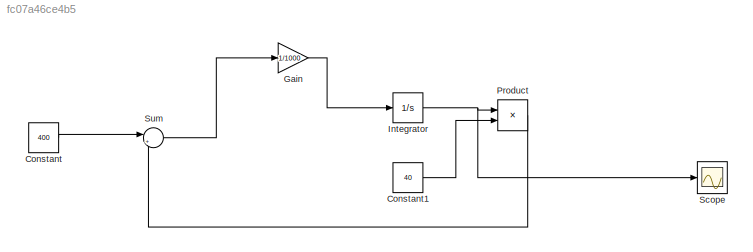
MODEL slx_fc07a46ce4b5
KIND model
CONFIG AbsTol = auto
CONFIG EnableMultiTasking = off
CONFIG FixedStep = auto
CONFIG MaxStep = auto
CONFIG MinStep = auto
CONFIG RelTol = 1e-3
CONFIG SampleTimeConstraint = Unconstrained
CONFIG SolverName = VariableStepAuto
CONFIG StartTime = 0.0
CONFIG StopTime = 10.0
BLOCK [Constant] Constant
  Value = 400
BLOCK [Constant] Constant1
  Value = 40
BLOCK [Gain] Gain
  Gain = 1/1000
BLOCK [Integrator] Integrator
BLOCK [Product] Product
BLOCK [Scope] Scope
  ActiveDisplayYMaximum = 3.7088994820990315
  ActiveDisplayYMinimum = -0.41209994245544784
  Floating = off
  GraphicalSettings = {"Style":{"BackgroundColor":[0.12941176470588237,0.12941176470588237,0.12941176470588237],"AxesColor":[0.07058823529411765,0.07058823529411765,0.07058823529411765],"LabelsColor":[0.8509803921568627,0.8509803921568627,0.8509803921568627],"PreserveColors":false,"Visible":[true],"LineStyle":["-"],"LineWidth":[1.5],"BarWidth":[0.9],"LineColor":["auto"],"LineFaceAlpha":[1],"LineEdgeAlpha":[1],"Marker":...<+2006ch>
  MultipleDisplayCache = [{"MaxYLimMag":3.7088994820990315,"MaxYLimReal":3.7088994820990315,"MinYLimMag":0,"MinYLimReal":-0.41209994245544784,"PlotAsMagnitudePhase":false,"ShowGrid":true,"ShowLegend":false,"Title":"%<SignalLabel>","YLabel":""}]
  NumInputPorts = 1
  ScopeFrameLocation = window
  WasSavedAsWebScope = on
  WindowPosition = [568.000000,115.000000,560.000000,420.000000,]
BLOCK [Sum] Sum
  Inputs = |+-
LINE Constant1:1 -> Product:2
LINE Constant:1 -> Sum:1
LINE Gain:1 -> Integrator:1
NET Integrator:1 -> Product:1, Scope:1
LINE Product:1 -> Sum:2
LINE Sum:1 -> Gain:1
note: NET lines group one-source signal fan-out (src -> all destinations, sorted); 1:1 wires keep LINE
